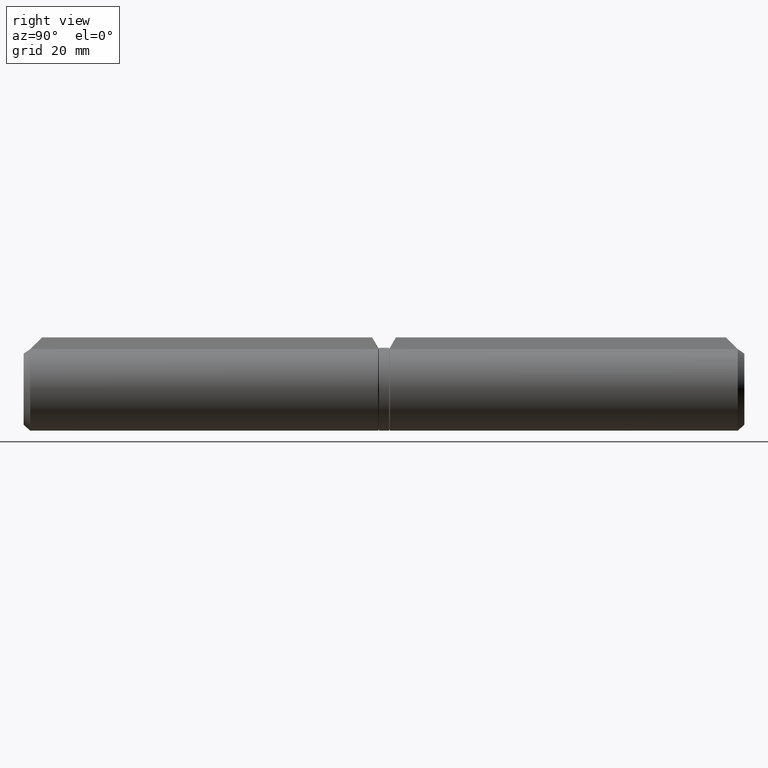
[diagram: clean part render]
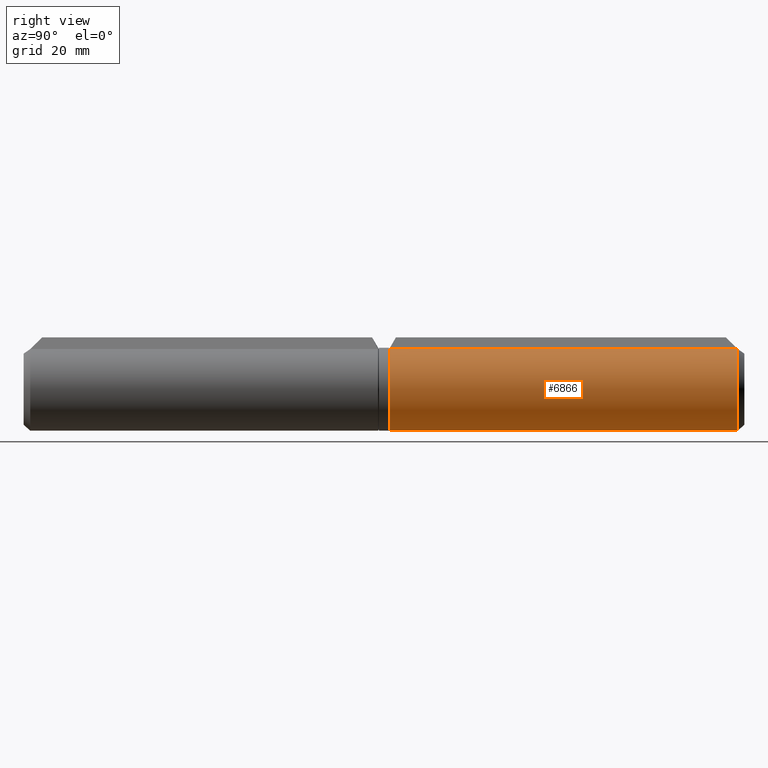
[diagram: same view with one face highlighted and labeled with its STEP entity id]
A machine part, right view. The second image highlights one B-rep face of the part: STEP entity #6866.
In plain terms, the highlighted cylindrical surface (partial cylindrical patch) has radius 8 mm, axis along (0, 1, -0).
Its self-contained STEP definition (entity closure, byte-faithful):
#892 = DIRECTION ( 'NONE',  ( 0.000000000000000000, 0.000000000000000000, -1.000000000000000000 ) ) ;
#1882 = VECTOR ( 'NONE', #11058, 1000.000000000000000 ) ;
#2192 = CIRCLE ( 'NONE', #14358, 8.000000000000000000 ) ;
#2610 = DIRECTION ( 'NONE',  ( -0.000000000000000000, -1.000000000000000000, -0.000000000000000000 ) ) ;
#3194 = EDGE_CURVE ( 'NONE', #11901, #7594, #9756, .T. ) ;
#3460 = ORIENTED_EDGE ( 'NONE', *, *, #11179, .T. ) ;
#3643 = CARTESIAN_POINT ( 'NONE',  ( -1.999999999999999112, 68.35333380148257731, -7.745966692414835819 ) ) ;
#3862 = EDGE_CURVE ( 'NONE', #11901, #11924, #16255, .T. ) ;
#5228 = EDGE_CURVE ( 'NONE', #13320, #7594, #2192, .T. ) ;
#5344 = LINE ( 'NONE', #13907, #1882 ) ;
#5480 = ORIENTED_EDGE ( 'NONE', *, *, #3194, .F. ) ;
#6132 = CARTESIAN_POINT ( 'NONE',  ( -1.999999999999999556, -4.591368657786393470, -7.745966692414834931 ) ) ;
#6163 = ORIENTED_EDGE ( 'NONE', *, *, #3862, .T. ) ;
#6296 = DIRECTION ( 'NONE',  ( 0.000000000000000000, 1.000000000000000000, 1.899128710886516785E-18 ) ) ;
#6417 = AXIS2_PLACEMENT_3D ( 'NONE', #16329, #9968, #892 ) ;
#6545 = CARTESIAN_POINT ( 'NONE',  ( 1.999999999999999556, 68.35333380148257731, -7.745966692414835819 ) ) ;
#6616 = CYLINDRICAL_SURFACE ( 'NONE', #6417, 8.000000000000000000 ) ;
#6866 = ADVANCED_FACE ( 'NONE', ( #10124 ), #6616, .T. ) ;
#6922 = EDGE_LOOP ( 'NONE', ( #3460, #15300, #5480, #6163 ) ) ;
#7594 = VERTEX_POINT ( 'NONE', #3643 ) ;
#7764 = CARTESIAN_POINT ( 'NONE',  ( -2.000000000000001332, 1.287078023558462236, -7.745966692414832266 ) ) ;
#8997 = CARTESIAN_POINT ( 'NONE',  ( 0.000000000000000000, 68.35333380148257731, 0.000000000000000000 ) ) ;
#9756 = LINE ( 'NONE', #6132, #13443 ) ;
#9968 = DIRECTION ( 'NONE',  ( -0.000000000000000000, -1.000000000000000000, -0.000000000000000000 ) ) ;
#10124 = FACE_OUTER_BOUND ( 'NONE', #6922, .T. ) ;
#11058 = DIRECTION ( 'NONE',  ( 0.000000000000000000, 1.000000000000000000, 0.000000000000000000 ) ) ;
#11179 = EDGE_CURVE ( 'NONE', #11924, #13320, #5344, .T. ) ;
#11463 = DIRECTION ( 'NONE',  ( 0.000000000000000000, 0.000000000000000000, 1.000000000000000000 ) ) ;
#11849 = DIRECTION ( 'NONE',  ( 0.000000000000000000, 0.000000000000000000, -1.000000000000000000 ) ) ;
#11901 = VERTEX_POINT ( 'NONE', #7764 ) ;
#11924 = VERTEX_POINT ( 'NONE', #13034 ) ;
#12981 = AXIS2_PLACEMENT_3D ( 'NONE', #15572, #6296, #11463 ) ;
#13034 = CARTESIAN_POINT ( 'NONE',  ( 2.000000000000000444, 1.287078023558462903, -7.745966692414834931 ) ) ;
#13320 = VERTEX_POINT ( 'NONE', #6545 ) ;
#13443 = VECTOR ( 'NONE', #16314, 1000.000000000000000 ) ;
#13907 = CARTESIAN_POINT ( 'NONE',  ( 1.999999999999999556, -4.591368657786393470, -7.745966692414835819 ) ) ;
#14358 = AXIS2_PLACEMENT_3D ( 'NONE', #8997, #2610, #11849 ) ;
#15300 = ORIENTED_EDGE ( 'NONE', *, *, #5228, .T. ) ;
#15572 = CARTESIAN_POINT ( 'NONE',  ( 0.000000000000000000, 1.287078023558462903, 2.444326827690950655E-18 ) ) ;
#16255 = CIRCLE ( 'NONE', #12981, 8.000000000000000000 ) ;
#16314 = DIRECTION ( 'NONE',  ( 0.000000000000000000, 1.000000000000000000, 0.000000000000000000 ) ) ;
#16329 = CARTESIAN_POINT ( 'NONE',  ( 0.000000000000000000, 68.50000000000000000, 0.000000000000000000 ) ) ;